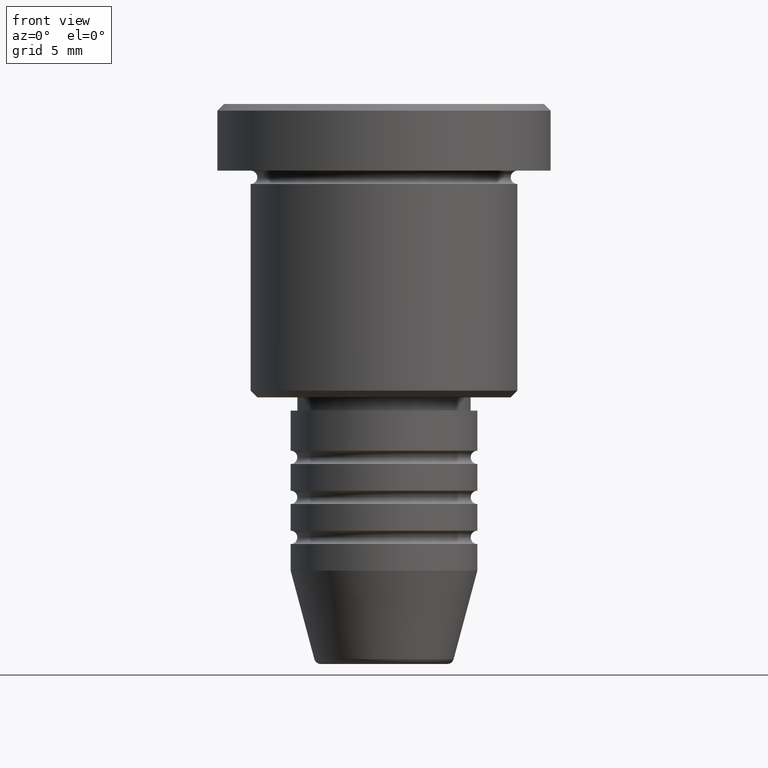
[diagram: clean part render]
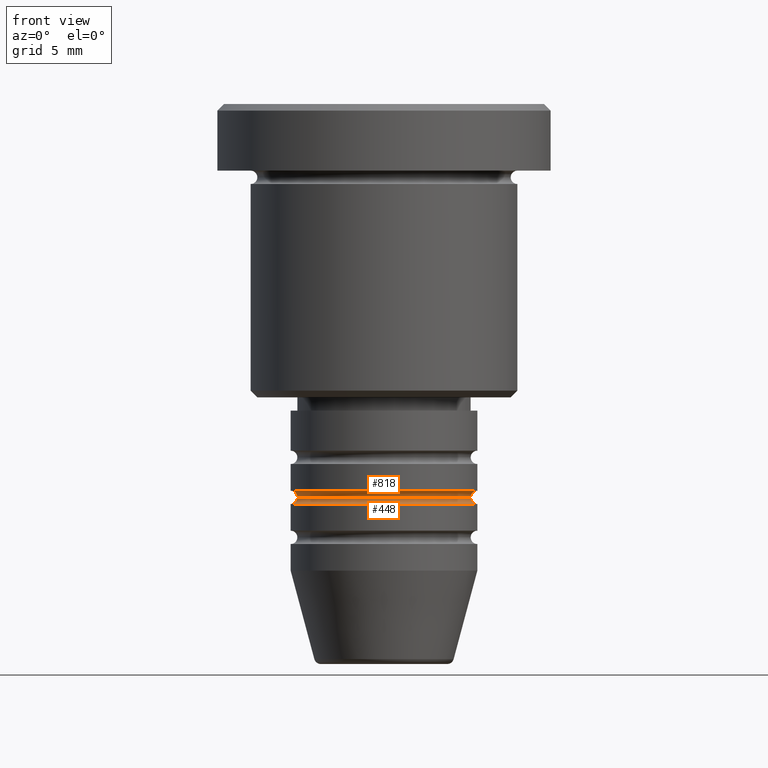
[diagram: same view with one multi-face feature highlighted, each face labeled with its STEP entity id]
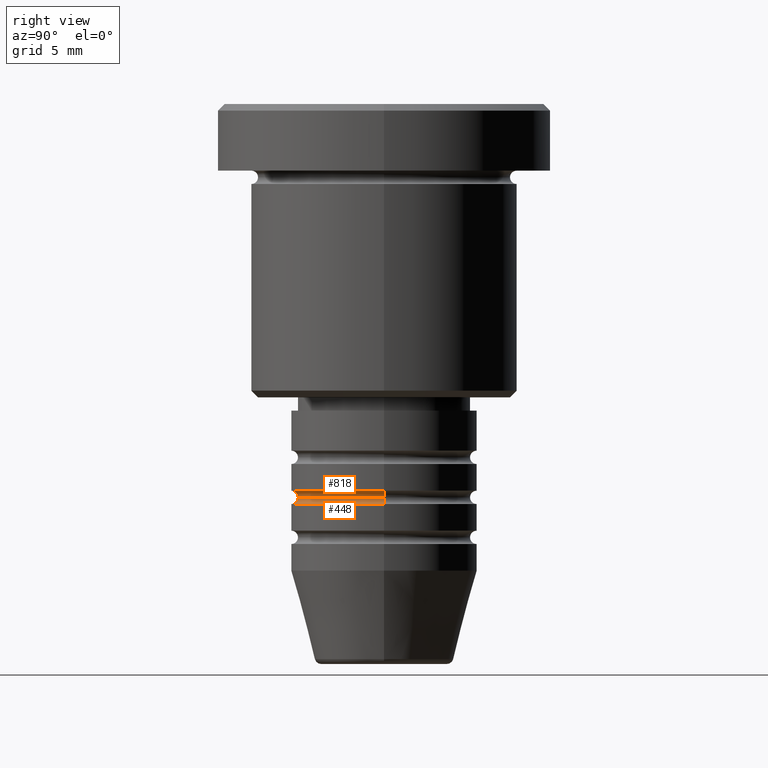
[diagram: same view with one multi-face feature highlighted, each face labeled with its STEP entity id]
A machine part, front view. The highlighted faces form ONE feature: a constant-radius fillet chain: 2 tangent blend faces with common blend radius 0.5 mm. The faces share edges in the B-rep.
A second angle (right view) of the same feature is appended — it is thin or edge-on in the first view.
Their STEP definitions:
[1] entity #818 (Torus):
#37 = DIRECTION ( 'NONE',  ( 1.000000000000000000, 0.000000000000000000, 0.000000000000000000 ) ) ;
#111 = ORIENTED_EDGE ( 'NONE', *, *, #1064, .F. ) ;
#150 = AXIS2_PLACEMENT_3D ( 'NONE', #1165, #175, #812 ) ;
#157 = ORIENTED_EDGE ( 'NONE', *, *, #638, .T. ) ;
#174 = FACE_OUTER_BOUND ( 'NONE', #338, .T. ) ;
#175 = DIRECTION ( 'NONE',  ( -1.224646799147353207E-16, 1.000000000000000000, 0.000000000000000000 ) ) ;
#190 = CIRCLE ( 'NONE', #707, 6.500000000000000888 ) ;
#211 = CIRCLE ( 'NONE', #150, 0.5000000000000004441 ) ;
#225 = VERTEX_POINT ( 'NONE', #791 ) ;
#231 = CIRCLE ( 'NONE', #333, 7.000000000000000000 ) ;
#238 = CARTESIAN_POINT ( 'NONE',  ( -6.500000000000000888, 8.266365894244635319E-16, -29.49999999999997868 ) ) ;
#250 = AXIS2_PLACEMENT_3D ( 'NONE', #1129, #678, #1043 ) ;
#254 = EDGE_CURVE ( 'NONE', #919, #225, #211, .T. ) ;
#286 = DIRECTION ( 'NONE',  ( 0.000000000000000000, 0.000000000000000000, -1.000000000000000000 ) ) ;
#296 = CARTESIAN_POINT ( 'NONE',  ( 6.500000000000000888, 0.000000000000000000, -29.49999999999997868 ) ) ;
#320 = CARTESIAN_POINT ( 'NONE',  ( 0.000000000000000000, 0.000000000000000000, -28.99999999999997868 ) ) ;
#333 = AXIS2_PLACEMENT_3D ( 'NONE', #320, #778, #37 ) ;
#337 = CIRCLE ( 'NONE', #250, 0.5000000000000004441 ) ;
#338 = EDGE_LOOP ( 'NONE', ( #157, #559, #700, #111 ) ) ;
#488 = VERTEX_POINT ( 'NONE', #907 ) ;
#559 = ORIENTED_EDGE ( 'NONE', *, *, #254, .T. ) ;
#592 = EDGE_CURVE ( 'NONE', #488, #225, #231, .T. ) ;
#603 = DIRECTION ( 'NONE',  ( -0.000000000000000000, -0.000000000000000000, 1.000000000000000000 ) ) ;
#618 = VERTEX_POINT ( 'NONE', #238 ) ;
#638 = EDGE_CURVE ( 'NONE', #618, #919, #190, .T. ) ;
#678 = DIRECTION ( 'NONE',  ( -0.000000000000000000, -1.000000000000000000, -0.000000000000000000 ) ) ;
#700 = ORIENTED_EDGE ( 'NONE', *, *, #592, .F. ) ;
#707 = AXIS2_PLACEMENT_3D ( 'NONE', #790, #603, #1059 ) ;
#732 = CARTESIAN_POINT ( 'NONE',  ( 0.000000000000000000, 0.000000000000000000, -29.49999999999997868 ) ) ;
#778 = DIRECTION ( 'NONE',  ( -0.000000000000000000, -0.000000000000000000, 1.000000000000000000 ) ) ;
#790 = CARTESIAN_POINT ( 'NONE',  ( 0.000000000000000000, 0.000000000000000000, -29.49999999999997868 ) ) ;
#791 = CARTESIAN_POINT ( 'NONE',  ( 7.000000000000000000, 0.000000000000000000, -28.99999999999997868 ) ) ;
#812 = DIRECTION ( 'NONE',  ( -1.000000000000000000, -1.224646799147351482E-16, 0.000000000000000000 ) ) ;
#818 = ADVANCED_FACE ( 'NONE', ( #174 ), #1106, .F. ) ;
#819 = DIRECTION ( 'NONE',  ( -1.000000000000000000, 0.000000000000000000, 0.000000000000000000 ) ) ;
#907 = CARTESIAN_POINT ( 'NONE',  ( -7.000000000000000000, 8.572527594031473190E-16, -28.99999999999997868 ) ) ;
#919 = VERTEX_POINT ( 'NONE', #296 ) ;
#1043 = DIRECTION ( 'NONE',  ( 0.000000000000000000, 0.000000000000000000, -1.000000000000000000 ) ) ;
#1059 = DIRECTION ( 'NONE',  ( 1.000000000000000000, 0.000000000000000000, 0.000000000000000000 ) ) ;
#1064 = EDGE_CURVE ( 'NONE', #618, #488, #337, .T. ) ;
#1106 = TOROIDAL_SURFACE ( 'NONE', #1180, 7.000000000000000888, 0.5000000000000000000 ) ;
#1129 = CARTESIAN_POINT ( 'NONE',  ( -7.000000000000000888, 0.000000000000000000, -29.49999999999997868 ) ) ;
#1165 = CARTESIAN_POINT ( 'NONE',  ( 7.000000000000000888, 8.572527594031474176E-16, -29.49999999999997868 ) ) ;
#1180 = AXIS2_PLACEMENT_3D ( 'NONE', #732, #286, #819 ) ;
[2] entity #448 (Torus):
#89 = EDGE_CURVE ( 'NONE', #618, #1147, #844, .T. ) ;
#136 = AXIS2_PLACEMENT_3D ( 'NONE', #233, #766, #600 ) ;
#154 = CIRCLE ( 'NONE', #1069, 0.5000000000000004441 ) ;
#190 = CIRCLE ( 'NONE', #707, 6.500000000000000888 ) ;
#222 = EDGE_CURVE ( 'NONE', #1147, #648, #425, .T. ) ;
#233 = CARTESIAN_POINT ( 'NONE',  ( -7.000000000000000888, 8.572527594031474176E-16, -29.49999999999997868 ) ) ;
#238 = CARTESIAN_POINT ( 'NONE',  ( -6.500000000000000888, 8.266365894244635319E-16, -29.49999999999997868 ) ) ;
#249 = CARTESIAN_POINT ( 'NONE',  ( 0.000000000000000000, 0.000000000000000000, -29.99999999999998224 ) ) ;
#296 = CARTESIAN_POINT ( 'NONE',  ( 6.500000000000000888, 0.000000000000000000, -29.49999999999997868 ) ) ;
#368 = CARTESIAN_POINT ( 'NONE',  ( 0.000000000000000000, 0.000000000000000000, -29.49999999999997868 ) ) ;
#425 = CIRCLE ( 'NONE', #1084, 7.000000000000000000 ) ;
#432 = EDGE_LOOP ( 'NONE', ( #545, #774, #635, #535 ) ) ;
#438 = CARTESIAN_POINT ( 'NONE',  ( 7.000000000000000888, 0.000000000000000000, -29.49999999999997868 ) ) ;
#448 = ADVANCED_FACE ( 'NONE', ( #1025 ), #785, .F. ) ;
#535 = ORIENTED_EDGE ( 'NONE', *, *, #781, .F. ) ;
#536 = DIRECTION ( 'NONE',  ( 0.000000000000000000, 0.000000000000000000, -1.000000000000000000 ) ) ;
#545 = ORIENTED_EDGE ( 'NONE', *, *, #638, .F. ) ;
#600 = DIRECTION ( 'NONE',  ( -1.000000000000000000, 1.224646799147351482E-16, 0.000000000000000000 ) ) ;
#603 = DIRECTION ( 'NONE',  ( -0.000000000000000000, -0.000000000000000000, 1.000000000000000000 ) ) ;
#618 = VERTEX_POINT ( 'NONE', #238 ) ;
#621 = DIRECTION ( 'NONE',  ( 0.000000000000000000, -1.000000000000000000, 0.000000000000000000 ) ) ;
#635 = ORIENTED_EDGE ( 'NONE', *, *, #222, .T. ) ;
#638 = EDGE_CURVE ( 'NONE', #618, #919, #190, .T. ) ;
#648 = VERTEX_POINT ( 'NONE', #1152 ) ;
#707 = AXIS2_PLACEMENT_3D ( 'NONE', #790, #603, #1059 ) ;
#711 = CARTESIAN_POINT ( 'NONE',  ( -7.000000000000000000, 8.572527594031473190E-16, -29.99999999999998224 ) ) ;
#766 = DIRECTION ( 'NONE',  ( 1.224646799147353207E-16, 1.000000000000000000, 0.000000000000000000 ) ) ;
#774 = ORIENTED_EDGE ( 'NONE', *, *, #89, .T. ) ;
#781 = EDGE_CURVE ( 'NONE', #919, #648, #154, .T. ) ;
#785 = TOROIDAL_SURFACE ( 'NONE', #864, 7.000000000000000888, 0.5000000000000000000 ) ;
#790 = CARTESIAN_POINT ( 'NONE',  ( 0.000000000000000000, 0.000000000000000000, -29.49999999999997868 ) ) ;
#844 = CIRCLE ( 'NONE', #136, 0.5000000000000004441 ) ;
#864 = AXIS2_PLACEMENT_3D ( 'NONE', #368, #1015, #1090 ) ;
#919 = VERTEX_POINT ( 'NONE', #296 ) ;
#969 = DIRECTION ( 'NONE',  ( 1.000000000000000000, 0.000000000000000000, 0.000000000000000000 ) ) ;
#1015 = DIRECTION ( 'NONE',  ( -0.000000000000000000, -0.000000000000000000, 1.000000000000000000 ) ) ;
#1025 = FACE_OUTER_BOUND ( 'NONE', #432, .T. ) ;
#1059 = DIRECTION ( 'NONE',  ( 1.000000000000000000, 0.000000000000000000, 0.000000000000000000 ) ) ;
#1069 = AXIS2_PLACEMENT_3D ( 'NONE', #438, #621, #536 ) ;
#1084 = AXIS2_PLACEMENT_3D ( 'NONE', #249, #1153, #969 ) ;
#1090 = DIRECTION ( 'NONE',  ( 1.000000000000000000, 0.000000000000000000, 0.000000000000000000 ) ) ;
#1147 = VERTEX_POINT ( 'NONE', #711 ) ;
#1152 = CARTESIAN_POINT ( 'NONE',  ( 7.000000000000000000, 0.000000000000000000, -29.99999999999998224 ) ) ;
#1153 = DIRECTION ( 'NONE',  ( -0.000000000000000000, -0.000000000000000000, 1.000000000000000000 ) ) ;